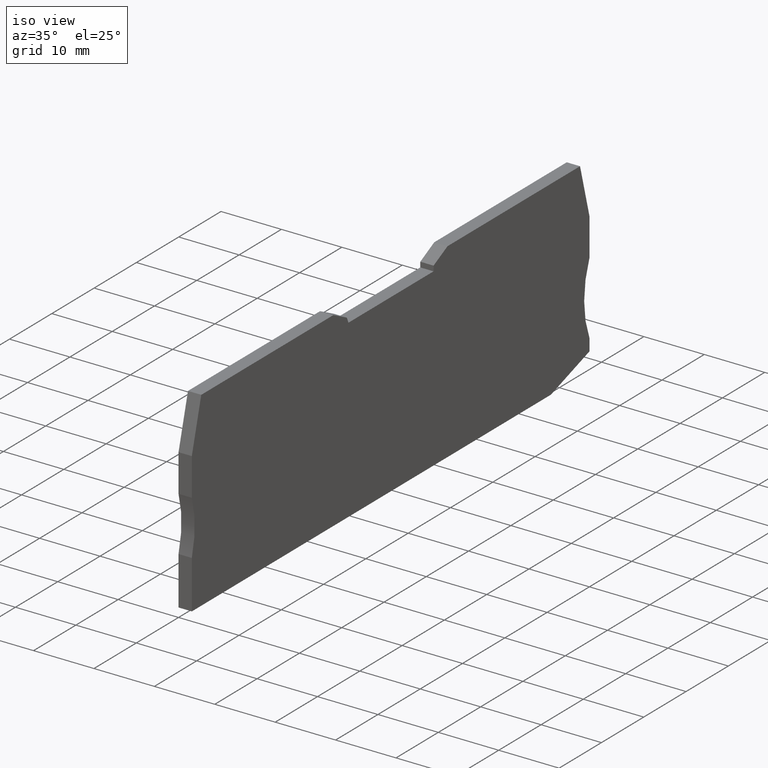
[diagram: clean part render]
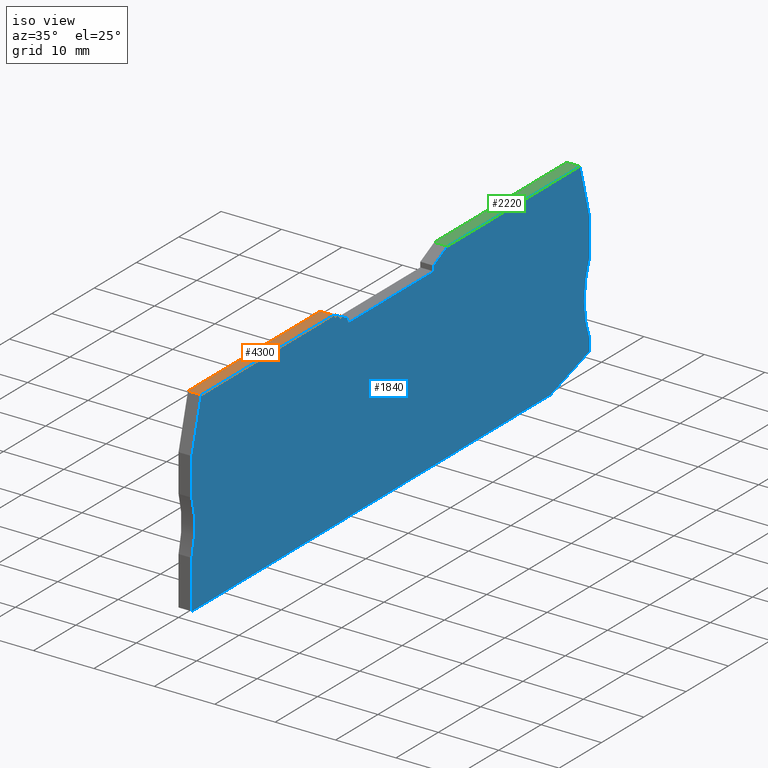
[diagram: same view with three faces highlighted in distinct colors, each labeled with its STEP entity id]
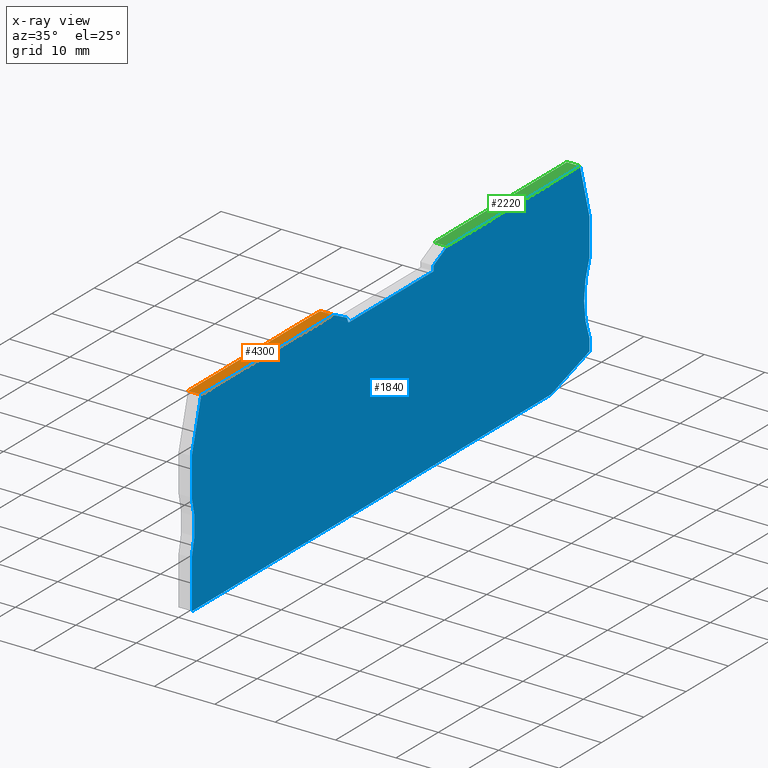
[diagram: x-ray of the same camera — body ghosted, the three highlighted faces saturated]
A machine part, iso view with three faces highlighted in distinct colors.
The next image is the same camera in x-ray (body ghosted, the three faces saturated) — at least one of them is partly hidden behind the body in this view.
Their STEP definitions:

[orange] entity #4300 — the highlighted planar face has unit normal (-0, -0, 1).
#590=CARTESIAN_POINT('',(24.5796808260341,-6.65000000001046,
2.19999999999845));
#600=VERTEX_POINT('',#590);
#1720=CARTESIAN_POINT('',(-6.64217575352925,-6.65000000001046,
2.19999999999845));
#1730=VERTEX_POINT('',#1720);
#1760=CARTESIAN_POINT('',(47.920285,-6.65000000001046,2.19999999999845))
;
#1770=DIRECTION('',(-1.,0.,3.52929730522715E-30));
#1780=VECTOR('',#1770,1.);
#1790=LINE('',#1760,#1780);
#1800=EDGE_CURVE('',#600,#1730,#1790,.T.);
#2780=CARTESIAN_POINT('',(-6.64217575352925,-6.65000000001046,
-3.68594044175551E-14));
#2790=VERTEX_POINT('',#2780);
#2840=CARTESIAN_POINT('',(-6.64217575352925,-6.65000000001046,
-2.8421709430404E-14));
#2850=DIRECTION('',(0.,0.,1.));
#2860=VECTOR('',#2850,1.);
#2870=LINE('',#2840,#2860);
#2880=EDGE_CURVE('',#2790,#1730,#2870,.T.);
#4070=CARTESIAN_POINT('',(13.8541909547486,-6.65000000001046,
-3.68594044175552E-14));
#4080=DIRECTION('',(-0.,1.,0.));
#4090=DIRECTION('',(3.52929730522715E-30,0.,1.));
#4100=AXIS2_PLACEMENT_3D('',#4070,#4080,#4090);
#4110=PLANE('',#4100);
#4120=CARTESIAN_POINT('',(24.5796808260341,-6.65000000001046,
-2.8421709430404E-14));
#4130=DIRECTION('',(6.38233830522613E-15,0.,1.));
#4140=VECTOR('',#4130,1.);
#4150=LINE('',#4120,#4140);
#4160=CARTESIAN_POINT('',(24.5796808260341,-6.65000000001046,
-3.68594044175552E-14));
#4170=VERTEX_POINT('',#4160);
#4180=EDGE_CURVE('',#4170,#600,#4150,.T.);
#4190=ORIENTED_EDGE('',*,*,#4180,.F.);
#4200=ORIENTED_EDGE('',*,*,#1800,.F.);
#4210=ORIENTED_EDGE('',*,*,#2880,.T.);
#4220=CARTESIAN_POINT('',(47.920285,-6.65000000001046,
-3.68594044175553E-14));
#4230=DIRECTION('',(-1.,0.,3.52929730522715E-30));
#4240=VECTOR('',#4230,1.);
#4250=LINE('',#4220,#4240);
#4260=EDGE_CURVE('',#4170,#2790,#4250,.T.);
#4270=ORIENTED_EDGE('',*,*,#4260,.T.);
#4280=EDGE_LOOP('',(#4270,#4210,#4200,#4190));
#4290=FACE_OUTER_BOUND('',#4280,.T.);
#4300=ADVANCED_FACE('',(#4290),#4110,.T.);

[blue] entity #1840 — the highlighted planar face has unit normal (1, 0, -0).
#60=CARTESIAN_POINT('',(47.920285,-47.4566600413391,2.19999999999833));
#70=DIRECTION('',(0.949806217012117,0.312838856482264,
9.43689570931383E-16));
#80=VECTOR('',#70,1.);
#90=LINE('',#60,#80);
#100=CARTESIAN_POINT('',(76.0243170722712,-38.2000000000014,
2.19999999999836));
#110=VERTEX_POINT('',#100);
#120=CARTESIAN_POINT('',(85.1296808260529,-35.2009550015923,
2.19999999999836));
#130=VERTEX_POINT('',#120);
#140=EDGE_CURVE('',#110,#130,#90,.T.);
#480=CARTESIAN_POINT('',(13.8541909547486,-6.65000000001046,
2.19999999999845));
#490=DIRECTION('',(3.52929730522715E-30,-3.03161873061274E-15,1.));
#500=DIRECTION('',(-1.06994838164277E-44,-1.,-3.03161873061274E-15));
#510=AXIS2_PLACEMENT_3D('',#480,#490,#500);
#520=PLANE('',#510);
#530=CARTESIAN_POINT('',(47.920285,-18.3203020870181,2.19999999999842));
#540=DIRECTION('',(-0.894427190999537,0.447213595500715,
1.33226762955019E-15));
#550=VECTOR('',#540,1.);
#560=LINE('',#530,#550);
#570=CARTESIAN_POINT('',(27.7810984886105,-8.25070883130206,
2.19999999999845));
#580=VERTEX_POINT('',#570);
#590=CARTESIAN_POINT('',(24.5796808260341,-6.65000000001046,
2.19999999999845));
#600=VERTEX_POINT('',#590);
#610=EDGE_CURVE('',#580,#600,#560,.T.);
#620=ORIENTED_EDGE('',*,*,#610,.T.);
#630=CARTESIAN_POINT('',(38.6158283461584,-33.886127,2.19999999999837));
#640=DIRECTION('',(-0.389303997086195,0.92110933002153,
2.80331313717852E-15));
#650=VECTOR('',#640,1.);
#660=LINE('',#630,#650);
#670=CARTESIAN_POINT('',(28.1611811075906,-9.15000000000794,
2.19999999999844));
#680=VERTEX_POINT('',#670);
#690=EDGE_CURVE('',#680,#580,#660,.T.);
#700=ORIENTED_EDGE('',*,*,#690,.T.);
#710=CARTESIAN_POINT('',(47.920285,-9.15000000000794,2.19999999999844));
#720=DIRECTION('',(-1.,0.,3.52929730522715E-30));
#730=VECTOR('',#720,1.);
#740=LINE('',#710,#730);
#750=CARTESIAN_POINT('',(48.278415052629,-9.15000000000794,
2.19999999999884));
#760=VERTEX_POINT('',#750);
#770=EDGE_CURVE('',#760,#680,#740,.T.);
#780=ORIENTED_EDGE('',*,*,#770,.T.);
#790=CARTESIAN_POINT('',(48.278415052629,-33.886127,2.19999999999837));
#800=DIRECTION('',(-3.78653234506086E-29,-1.,-3.03161873061274E-15));
#810=VECTOR('',#800,1.);
#820=LINE('',#790,#810);
#830=CARTESIAN_POINT('',(48.278415052629,-8.30000000000333,
2.19999999999845));
#840=VERTEX_POINT('',#830);
#850=EDGE_CURVE('',#840,#760,#820,.T.);
#860=ORIENTED_EDGE('',*,*,#850,.T.);
#870=CARTESIAN_POINT('',(47.920285,-8.4790650263176,2.19999999999845));
#880=DIRECTION('',(-0.894427191000128,-0.447213595499534,
-1.36002320516582E-15));
#890=VECTOR('',#880,1.);
#900=LINE('',#870,#890);
#910=CARTESIAN_POINT('',(51.5784150526186,-6.65000000001046,
2.19999999999845));
#920=VERTEX_POINT('',#910);
#930=EDGE_CURVE('',#920,#840,#900,.T.);
#940=ORIENTED_EDGE('',*,*,#930,.T.);
#950=CARTESIAN_POINT('',(47.920285,-6.65000000001046,2.19999999999845));
#960=DIRECTION('',(-1.,0.,3.52929730522715E-30));
#970=VECTOR('',#960,1.);
#980=LINE('',#950,#970);
#990=CARTESIAN_POINT('',(82.9015374042713,-6.65000000001045,
2.19999999999845));
#1000=VERTEX_POINT('',#990);
#1010=EDGE_CURVE('',#1000,#920,#980,.T.);
#1020=ORIENTED_EDGE('',*,*,#1010,.T.);
#1030=CARTESIAN_POINT('',(90.1994356388816,-33.886127,2.19999999999837))
;
#1040=DIRECTION('',(-0.258819045102903,0.965925826288966,
2.96984659087229E-15));
#1050=VECTOR('',#1040,1.);
#1060=LINE('',#1030,#1050);
#1070=CARTESIAN_POINT('',(85.1296808260516,-14.9655444566315,
2.19999999999843));
#1080=VERTEX_POINT('',#1070);
#1090=EDGE_CURVE('',#1080,#1000,#1060,.T.);
#1100=ORIENTED_EDGE('',*,*,#1090,.T.);
#1110=CARTESIAN_POINT('',(85.1296808260516,-33.886127,2.19999999999837))
;
#1120=DIRECTION('',(-2.77555756156289E-17,1.,3.03161873061274E-15));
#1130=VECTOR('',#1120,1.);
#1140=LINE('',#1110,#1130);
#1150=CARTESIAN_POINT('',(85.1296808260516,-21.2000000000027,
2.19999999999839));
#1160=VERTEX_POINT('',#1150);
#1170=EDGE_CURVE('',#1160,#1080,#1140,.T.);
#1180=ORIENTED_EDGE('',*,*,#1170,.T.);
#1190=CARTESIAN_POINT('',(98.8774079109191,-27.2000000000027,
2.19999999999839));
#1200=DIRECTION('',(0.,0.,1.));
#1210=DIRECTION('',(1.,0.,0.));
#1220=AXIS2_PLACEMENT_3D('',#1190,#1200,#1210);
#1230=CIRCLE('',#1220,15.);
#1240=CARTESIAN_POINT('',(85.1296808260528,-33.2000000000057,
2.19999999999837));
#1250=VERTEX_POINT('',#1240);
#1260=EDGE_CURVE('',#1160,#1250,#1230,.T.);
#1270=ORIENTED_EDGE('',*,*,#1260,.F.);
#1280=CARTESIAN_POINT('',(85.1296808260528,-33.886127,2.19999999999837))
;
#1290=DIRECTION('',(0.,-1.,-3.03161873061274E-15));
#1300=VECTOR('',#1290,1.);
#1310=LINE('',#1280,#1300);
#1320=EDGE_CURVE('',#1250,#130,#1310,.T.);
#1330=ORIENTED_EDGE('',*,*,#1320,.F.);
#1340=ORIENTED_EDGE('',*,*,#140,.T.);
#1350=CARTESIAN_POINT('',(47.920285,-38.2000000000014,2.19999999999836))
;
#1360=DIRECTION('',(1.,0.,-3.52929730522715E-30));
#1370=VECTOR('',#1360,1.);
#1380=LINE('',#1350,#1370);
#1390=CARTESIAN_POINT('',(-8.87031917530946,-38.2000000000014,
2.19999999999836));
#1400=VERTEX_POINT('',#1390);
#1410=EDGE_CURVE('',#1400,#110,#1380,.T.);
#1420=ORIENTED_EDGE('',*,*,#1410,.T.);
#1430=CARTESIAN_POINT('',(-8.87031917530946,-33.886127,2.19999999999837)
);
#1440=DIRECTION('',(0.,-1.,-3.03161873061274E-15));
#1450=VECTOR('',#1440,1.);
#1460=LINE('',#1430,#1450);
#1470=CARTESIAN_POINT('',(-8.87031917530946,-30.2000000000115,
2.19999999999839));
#1480=VERTEX_POINT('',#1470);
#1490=EDGE_CURVE('',#1480,#1400,#1460,.T.);
#1500=ORIENTED_EDGE('',*,*,#1490,.T.);
#1510=CARTESIAN_POINT('',(-23.1794071965627,-25.7000000000085,
2.19999999999839));
#1520=DIRECTION('',(0.,0.,1.));
#1530=DIRECTION('',(1.,0.,0.));
#1540=AXIS2_PLACEMENT_3D('',#1510,#1520,#1530);
#1550=CIRCLE('',#1540,15.);
#1560=CARTESIAN_POINT('',(-8.87031917530947,-21.2000000000055,
2.19999999999839));
#1570=VERTEX_POINT('',#1560);
#1580=EDGE_CURVE('',#1480,#1570,#1550,.T.);
#1590=ORIENTED_EDGE('',*,*,#1580,.F.);
#1600=CARTESIAN_POINT('',(-8.87031917530947,-33.886127,2.19999999999837)
);
#1610=DIRECTION('',(0.,-1.,-3.03161873061274E-15));
#1620=VECTOR('',#1610,1.);
#1630=LINE('',#1600,#1620);
#1640=CARTESIAN_POINT('',(-8.87031917530947,-14.9655444566314,
2.19999999999843));
#1650=VERTEX_POINT('',#1640);
#1660=EDGE_CURVE('',#1650,#1570,#1630,.T.);
#1670=ORIENTED_EDGE('',*,*,#1660,.T.);
#1680=CARTESIAN_POINT('',(-13.9400739881395,-33.886127,2.19999999999837)
);
#1690=DIRECTION('',(-0.258819045102903,-0.965925826288966,
-2.96984659087229E-15));
#1700=VECTOR('',#1690,1.);
#1710=LINE('',#1680,#1700);
#1720=CARTESIAN_POINT('',(-6.64217575352925,-6.65000000001046,
2.19999999999845));
#1730=VERTEX_POINT('',#1720);
#1740=EDGE_CURVE('',#1730,#1650,#1710,.T.);
#1750=ORIENTED_EDGE('',*,*,#1740,.T.);
#1760=CARTESIAN_POINT('',(47.920285,-6.65000000001046,2.19999999999845))
;
#1770=DIRECTION('',(-1.,0.,3.52929730522715E-30));
#1780=VECTOR('',#1770,1.);
#1790=LINE('',#1760,#1780);
#1800=EDGE_CURVE('',#600,#1730,#1790,.T.);
#1810=ORIENTED_EDGE('',*,*,#1800,.T.);
#1820=EDGE_LOOP('',(#1810,#1750,#1670,#1590,#1500,#1420,#1340,#1330,
#1270,#1180,#1100,#1020,#940,#860,#780,#700,#620));
#1830=FACE_OUTER_BOUND('',#1820,.T.);
#1840=ADVANCED_FACE('',(#1830),#520,.T.);

[green] entity #2220 — the highlighted planar face has unit normal (-0, -0, 1).
#910=CARTESIAN_POINT('',(51.5784150526186,-6.65000000001046,
2.19999999999845));
#920=VERTEX_POINT('',#910);
#950=CARTESIAN_POINT('',(47.920285,-6.65000000001046,2.19999999999845));
#960=DIRECTION('',(-1.,0.,3.52929730522715E-30));
#970=VECTOR('',#960,1.);
#980=LINE('',#950,#970);
#990=CARTESIAN_POINT('',(82.9015374042713,-6.65000000001045,
2.19999999999845));
#1000=VERTEX_POINT('',#990);
#1010=EDGE_CURVE('',#1000,#920,#980,.T.);
#1920=CARTESIAN_POINT('',(79.8284829547486,-6.65000000001046,
-3.68594044175552E-14));
#1930=DIRECTION('',(0.,1.,0.));
#1940=DIRECTION('',(0.,0.,1.));
#1950=AXIS2_PLACEMENT_3D('',#1920,#1930,#1940);
#1960=PLANE('',#1950);
#1970=CARTESIAN_POINT('',(82.9015374042713,-6.65000000001046,
-2.8421709430404E-14));
#1980=DIRECTION('',(0.,0.,-1.));
#1990=VECTOR('',#1980,1.);
#2000=LINE('',#1970,#1990);
#2010=CARTESIAN_POINT('',(82.9015374042713,-6.65000000001045,
-3.68594044175555E-14));
#2020=VERTEX_POINT('',#2010);
#2030=EDGE_CURVE('',#1000,#2020,#2000,.T.);
#2040=ORIENTED_EDGE('',*,*,#2030,.T.);
#2050=ORIENTED_EDGE('',*,*,#1010,.F.);
#2060=CARTESIAN_POINT('',(51.5784150526186,-6.65000000001045,
-2.8421709430404E-14));
#2070=DIRECTION('',(-1.85088132276715E-14,0.,-1.));
#2080=VECTOR('',#2070,1.);
#2090=LINE('',#2060,#2080);
#2100=CARTESIAN_POINT('',(51.5784150526186,-6.65000000001046,
-3.68594044175553E-14));
#2110=VERTEX_POINT('',#2100);
#2120=EDGE_CURVE('',#920,#2110,#2090,.T.);
#2130=ORIENTED_EDGE('',*,*,#2120,.F.);
#2140=CARTESIAN_POINT('',(47.920285,-6.65000000001046,
-3.68594044175553E-14));
#2150=DIRECTION('',(-1.,0.,3.52929730522715E-30));
#2160=VECTOR('',#2150,1.);
#2170=LINE('',#2140,#2160);
#2180=EDGE_CURVE('',#2020,#2110,#2170,.T.);
#2190=ORIENTED_EDGE('',*,*,#2180,.T.);
#2200=EDGE_LOOP('',(#2190,#2130,#2050,#2040));
#2210=FACE_OUTER_BOUND('',#2200,.T.);
#2220=ADVANCED_FACE('',(#2210),#1960,.T.);